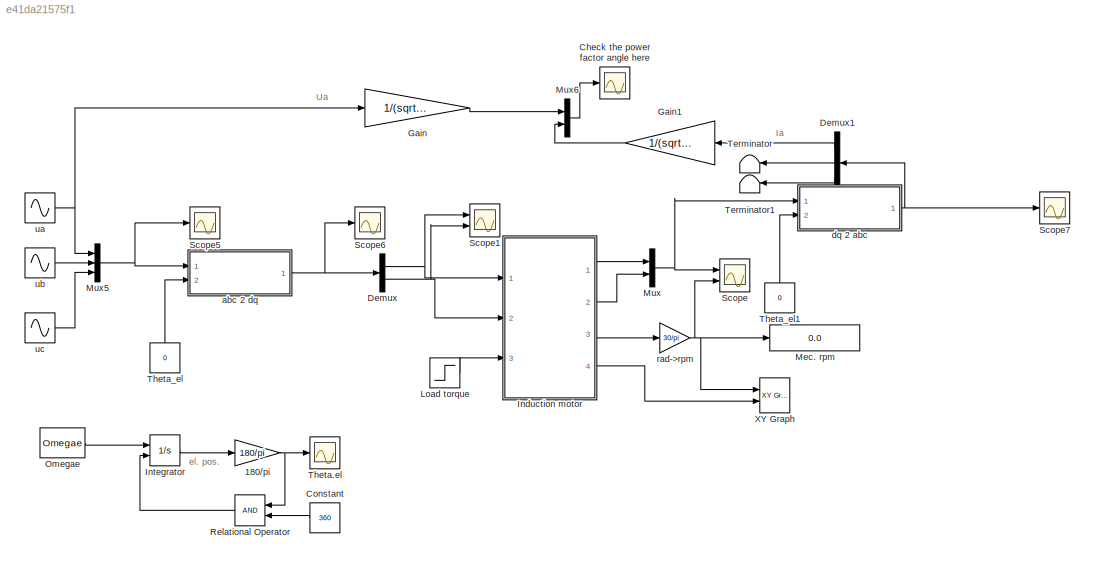
MODEL slx_e41da21575f1
KIND model
BLOCK [Gain] 180//pi
  Gain = 180/pi
  OutDataTypeStr = Inherit: Inherit via internal rule
  ParamDataTypeStr = Inherit: Inherit via internal rule
  SaturateOnIntegerOverflow = off
BLOCK [Scope] Check the power factor angle here
  DataFormat = StructureWithTime
  Floating = off
  NumInputPorts = 1
  Ports = [1]
  SampleTime = 0
  SaveName = ScopeData9
  ShowLegends = off
  ZoomMode = xonly
BLOCK [Constant] Constant
  Value = 360
BLOCK [Demux] Demux
  DisplayOption = bar
  Outputs = 2
  Ports = [1, 2]
BLOCK [Demux] Demux1
  DisplayOption = bar
  Outputs = 3
  Ports = [1, 3]
BLOCK [Gain] Gain
  Gain = 1/(sqrt(2)*Un)
  OutDataTypeStr = Inherit: Inherit via internal rule
  ParamDataTypeStr = Inherit: Inherit via internal rule
  SaturateOnIntegerOverflow = off
BLOCK [Gain] Gain1
  Gain = 1/(sqrt(2)*In)
  OutDataTypeStr = Inherit: Inherit via internal rule
  ParamDataTypeStr = Inherit: Inherit via internal rule
  SaturateOnIntegerOverflow = off
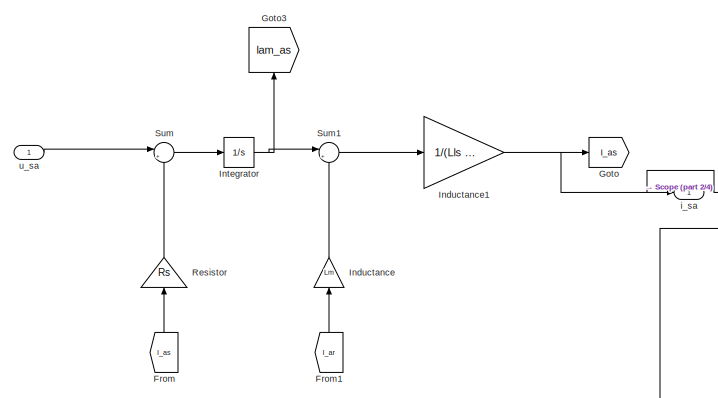
[diagram: Induction motor - part 1/4, top left region]
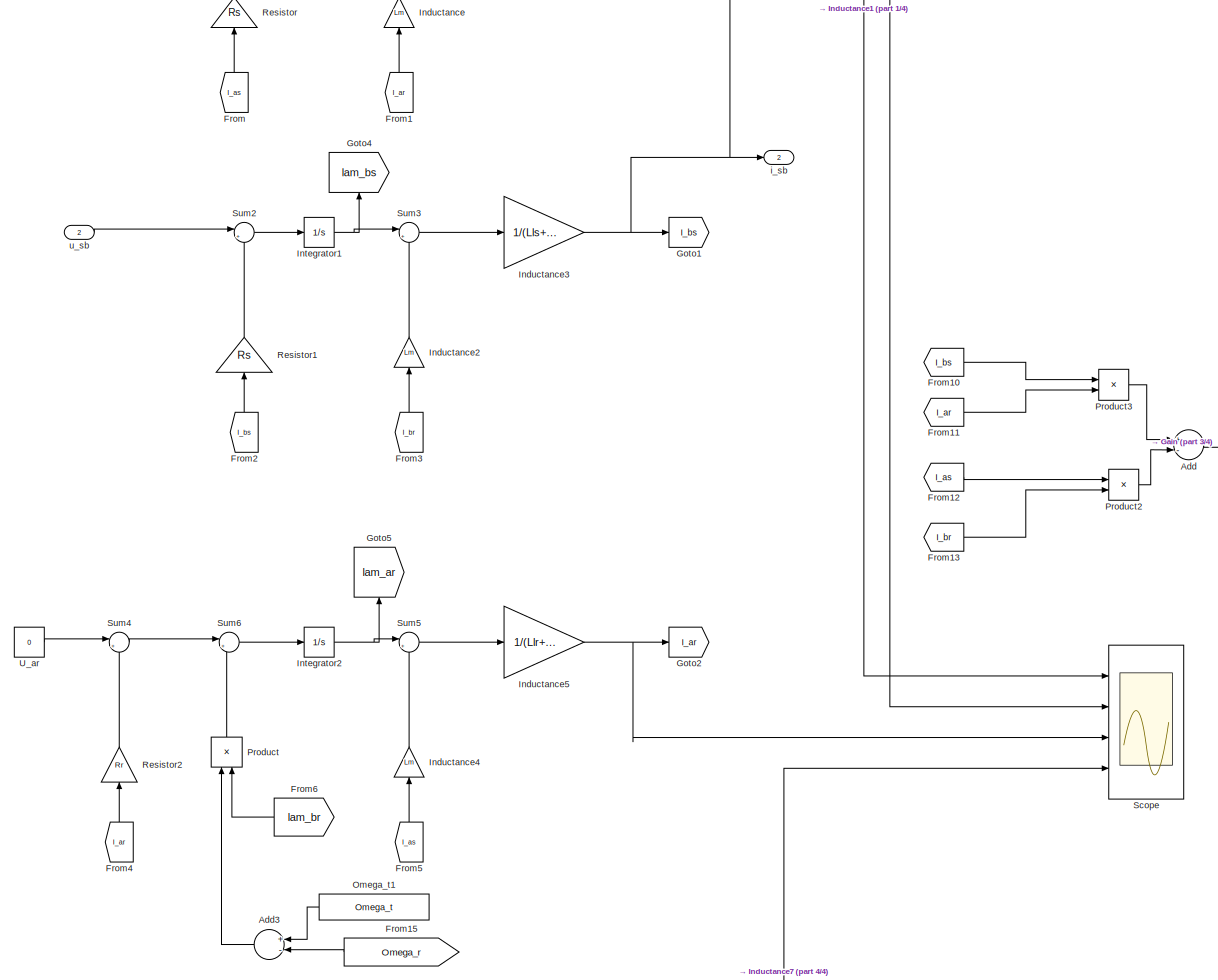
[diagram: Induction motor - part 2/4, middle left region]
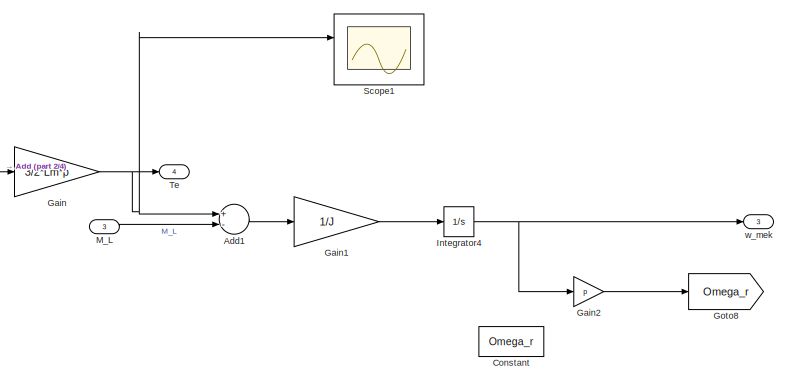
[diagram: Induction motor - part 3/4, middle right region]
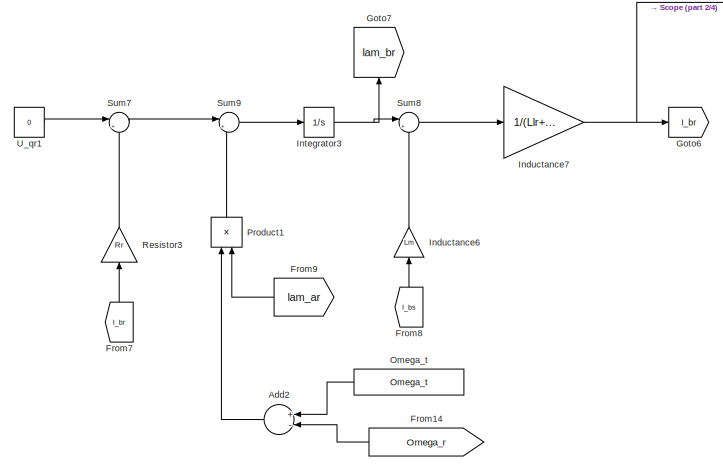
[diagram: Induction motor - part 4/4, bottom left region]
BLOCK [SubSystem] Induction motor
  FunctionWithSeparateData = off
  MaskHideContents = off
  MinAlgLoopOccurrences = off
  Opaque = off
  Ports = [3, 4]
  PropExecContextOutsideSubsystem = off
  RTWSystemCode = Auto
  RequestExecContextInheritance = off
BLOCK [Sum] Induction motor/Add
  InputSameDT = off
  Inputs = +-
  OutDataTypeStr = Inherit: Inherit via internal rule
  Ports = [2, 1]
  SaturateOnIntegerOverflow = off
BLOCK [Sum] Induction motor/Add1
  InputSameDT = off
  Inputs = +-
  OutDataTypeStr = Inherit: Inherit via internal rule
  Ports = [2, 1]
  SaturateOnIntegerOverflow = off
BLOCK [Sum] Induction motor/Add2
  InputSameDT = off
  Inputs = +-
  OutDataTypeStr = Inherit: Inherit via internal rule
  Ports = [2, 1]
  SaturateOnIntegerOverflow = off
BLOCK [Sum] Induction motor/Add3
  InputSameDT = off
  Inputs = +-
  OutDataTypeStr = Inherit: Inherit via internal rule
  Ports = [2, 1]
  SaturateOnIntegerOverflow = off
BLOCK [Constant] Induction motor/Constant
  Value = Omega_r
BLOCK [From] Induction motor/From
  GotoTag = I_as
BLOCK [From] Induction motor/From1
  GotoTag = I_ar
BLOCK [From] Induction motor/From10
  GotoTag = I_bs
BLOCK [From] Induction motor/From11
  GotoTag = I_ar
BLOCK [From] Induction motor/From12
  GotoTag = I_as
BLOCK [From] Induction motor/From13
  GotoTag = I_br
BLOCK [From] Induction motor/From14
  GotoTag = Omega_r
BLOCK [From] Induction motor/From15
  GotoTag = Omega_r
BLOCK [From] Induction motor/From2
  GotoTag = I_bs
BLOCK [From] Induction motor/From3
  GotoTag = I_br
BLOCK [From] Induction motor/From4
  GotoTag = I_ar
BLOCK [From] Induction motor/From5
  GotoTag = I_as
BLOCK [From] Induction motor/From6
  GotoTag = lam_br
BLOCK [From] Induction motor/From7
  GotoTag = I_br
BLOCK [From] Induction motor/From8
  GotoTag = I_bs
BLOCK [From] Induction motor/From9
  GotoTag = lam_ar
BLOCK [Gain] Induction motor/Gain
  Gain = 3/2*Lm*p
  OutDataTypeStr = Inherit: Inherit via internal rule
  ParamDataTypeStr = Inherit: Inherit via internal rule
  SaturateOnIntegerOverflow = off
BLOCK [Gain] Induction motor/Gain1
  Gain = 1/J
  OutDataTypeStr = Inherit: Inherit via internal rule
  ParamDataTypeStr = Inherit: Inherit via internal rule
  SaturateOnIntegerOverflow = off
BLOCK [Gain] Induction motor/Gain2
  Gain = p
  OutDataTypeStr = Inherit: Inherit via internal rule
  ParamDataTypeStr = Inherit: Inherit via internal rule
  SaturateOnIntegerOverflow = off
BLOCK [Goto] Induction motor/Goto
  GotoTag = I_as
BLOCK [Goto] Induction motor/Goto1
  GotoTag = I_bs
BLOCK [Goto] Induction motor/Goto2
  GotoTag = I_ar
BLOCK [Goto] Induction motor/Goto3
  GotoTag = lam_as
BLOCK [Goto] Induction motor/Goto4
  GotoTag = lam_bs
BLOCK [Goto] Induction motor/Goto5
  GotoTag = lam_ar
BLOCK [Goto] Induction motor/Goto6
  GotoTag = I_br
BLOCK [Goto] Induction motor/Goto7
  GotoTag = lam_br
BLOCK [Goto] Induction motor/Goto8
  GotoTag = Omega_r
BLOCK [Gain] Induction motor/Inductance
  Gain = Lm
  OutDataTypeStr = Inherit: Inherit via internal rule
  ParamDataTypeStr = Inherit: Inherit via internal rule
  SaturateOnIntegerOverflow = off
BLOCK [Gain] Induction motor/Inductance1
  Gain = 1/(Lls +Lm)
  OutDataTypeStr = Inherit: Inherit via internal rule
  ParamDataTypeStr = Inherit: Inherit via internal rule
  SaturateOnIntegerOverflow = off
BLOCK [Gain] Induction motor/Inductance2
  Gain = Lm
  OutDataTypeStr = Inherit: Inherit via internal rule
  ParamDataTypeStr = Inherit: Inherit via internal rule
  SaturateOnIntegerOverflow = off
BLOCK [Gain] Induction motor/Inductance3
  Gain = 1/(Lls+Lm)
  OutDataTypeStr = Inherit: Inherit via internal rule
  ParamDataTypeStr = Inherit: Inherit via internal rule
  SaturateOnIntegerOverflow = off
BLOCK [Gain] Induction motor/Inductance4
  Gain = Lm
  OutDataTypeStr = Inherit: Inherit via internal rule
  ParamDataTypeStr = Inherit: Inherit via internal rule
  SaturateOnIntegerOverflow = off
BLOCK [Gain] Induction motor/Inductance5
  Gain = 1/(Llr+Lm)
  OutDataTypeStr = Inherit: Inherit via internal rule
  ParamDataTypeStr = Inherit: Inherit via internal rule
  SaturateOnIntegerOverflow = off
BLOCK [Gain] Induction motor/Inductance6
  Gain = Lm
  OutDataTypeStr = Inherit: Inherit via internal rule
  ParamDataTypeStr = Inherit: Inherit via internal rule
  SaturateOnIntegerOverflow = off
BLOCK [Gain] Induction motor/Inductance7
  Gain = 1/(Llr+Lm)
  OutDataTypeStr = Inherit: Inherit via internal rule
  ParamDataTypeStr = Inherit: Inherit via internal rule
  SaturateOnIntegerOverflow = off
BLOCK [Integrator] Induction motor/Integrator
  Ports = [1, 1]
BLOCK [Integrator] Induction motor/Integrator1
  Ports = [1, 1]
BLOCK [Integrator] Induction motor/Integrator2
  Ports = [1, 1]
BLOCK [Integrator] Induction motor/Integrator3
  Ports = [1, 1]
BLOCK [Integrator] Induction motor/Integrator4
  Ports = [1, 1]
BLOCK [Inport] Induction motor/M_L
  IconDisplay = Port number
  Port = 3
BLOCK [Constant] Induction motor/Omega_t
  Value = Omega_t
BLOCK [Constant] Induction motor/Omega_t1
  Value = Omega_t
BLOCK [Product] Induction motor/Product
  InputSameDT = off
  OutDataTypeStr = Inherit: Inherit via internal rule
  Ports = [2, 1]
  RndMeth = Floor
  SaturateOnIntegerOverflow = off
BLOCK [Product] Induction motor/Product1
  InputSameDT = off
  OutDataTypeStr = Inherit: Inherit via internal rule
  Ports = [2, 1]
  RndMeth = Floor
  SaturateOnIntegerOverflow = off
BLOCK [Product] Induction motor/Product2
  InputSameDT = off
  OutDataTypeStr = Inherit: Inherit via internal rule
  Ports = [2, 1]
  RndMeth = Floor
  SaturateOnIntegerOverflow = off
BLOCK [Product] Induction motor/Product3
  InputSameDT = off
  OutDataTypeStr = Inherit: Inherit via internal rule
  Ports = [2, 1]
  RndMeth = Floor
  SaturateOnIntegerOverflow = off
BLOCK [Gain] Induction motor/Resistor
  Gain = Rs
  OutDataTypeStr = Inherit: Inherit via internal rule
  ParamDataTypeStr = Inherit: Inherit via internal rule
  SaturateOnIntegerOverflow = off
BLOCK [Gain] Induction motor/Resistor1
  Gain = Rs
  OutDataTypeStr = Inherit: Inherit via internal rule
  ParamDataTypeStr = Inherit: Inherit via internal rule
  SaturateOnIntegerOverflow = off
BLOCK [Gain] Induction motor/Resistor2
  Gain = Rr
  OutDataTypeStr = Inherit: Inherit via internal rule
  ParamDataTypeStr = Inherit: Inherit via internal rule
  SaturateOnIntegerOverflow = off
BLOCK [Gain] Induction motor/Resistor3
  Gain = Rr
  OutDataTypeStr = Inherit: Inherit via internal rule
  ParamDataTypeStr = Inherit: Inherit via internal rule
  SaturateOnIntegerOverflow = off
BLOCK [Scope] Induction motor/Scope
  DataFormat = StructureWithTime
  Floating = off
  LimitDataPoints = off
  NumInputPorts = 4
  Ports = [4]
  SampleTime = 0
  SaveName = ScopeData1
  ShowLegends = off
  YMax = 0~0~3.75e+14~3.75e+14
  YMin = -3.5e+14~-3.5e+14~0~0
BLOCK [Scope] Induction motor/Scope1
  DataFormat = StructureWithTime
  Floating = off
  LimitDataPoints = off
  NumInputPorts = 2
  Ports = [2]
  SampleTime = 0
  SaveName = ScopeData3
  ShowLegends = off
  YMax = 0~0
  YMin = -3.5e+14~-3.5e+14
  ZoomMode = yonly
BLOCK [Sum] Induction motor/Sum
  IconShape = round
  InputSameDT = off
  Inputs = |+-
  OutDataTypeStr = Inherit: Inherit via internal rule
  Ports = [2, 1]
  SaturateOnIntegerOverflow = off
BLOCK [Sum] Induction motor/Sum1
  IconShape = round
  InputSameDT = off
  Inputs = |+-
  OutDataTypeStr = Inherit: Inherit via internal rule
  Ports = [2, 1]
  SaturateOnIntegerOverflow = off
BLOCK [Sum] Induction motor/Sum2
  IconShape = round
  InputSameDT = off
  Inputs = |+-
  OutDataTypeStr = Inherit: Inherit via internal rule
  Ports = [2, 1]
  SaturateOnIntegerOverflow = off
BLOCK [Sum] Induction motor/Sum3
  IconShape = round
  InputSameDT = off
  Inputs = |+-
  OutDataTypeStr = Inherit: Inherit via internal rule
  Ports = [2, 1]
  SaturateOnIntegerOverflow = off
BLOCK [Sum] Induction motor/Sum4
  IconShape = round
  InputSameDT = off
  Inputs = |+-
  OutDataTypeStr = Inherit: Inherit via internal rule
  Ports = [2, 1]
  SaturateOnIntegerOverflow = off
BLOCK [Sum] Induction motor/Sum5
  IconShape = round
  InputSameDT = off
  Inputs = |+-
  OutDataTypeStr = Inherit: Inherit via internal rule
  Ports = [2, 1]
  SaturateOnIntegerOverflow = off
BLOCK [Sum] Induction motor/Sum6
  IconShape = round
  InputSameDT = off
  Inputs = |++
  OutDataTypeStr = Inherit: Inherit via internal rule
  Ports = [2, 1]
  SaturateOnIntegerOverflow = off
BLOCK [Sum] Induction motor/Sum7
  IconShape = round
  InputSameDT = off
  Inputs = |+-
  OutDataTypeStr = Inherit: Inherit via internal rule
  Ports = [2, 1]
  SaturateOnIntegerOverflow = off
BLOCK [Sum] Induction motor/Sum8
  IconShape = round
  InputSameDT = off
  Inputs = |+-
  OutDataTypeStr = Inherit: Inherit via internal rule
  Ports = [2, 1]
  SaturateOnIntegerOverflow = off
BLOCK [Sum] Induction motor/Sum9
  IconShape = round
  InputSameDT = off
  Inputs = |+-
  OutDataTypeStr = Inherit: Inherit via internal rule
  Ports = [2, 1]
  SaturateOnIntegerOverflow = off
BLOCK [Outport] Induction motor/Te
  IconDisplay = Port number
  Port = 4
BLOCK [Constant] Induction motor/U_ar
  Value = 0
BLOCK [Constant] Induction motor/U_qr1
  Value = 0
BLOCK [Outport] Induction motor/i_sa
  IconDisplay = Port number
BLOCK [Outport] Induction motor/i_sb
  IconDisplay = Port number
  Port = 2
BLOCK [Inport] Induction motor/u_sa
  IconDisplay = Port number
BLOCK [Inport] Induction motor/u_sb
  IconDisplay = Port number
  Port = 2
BLOCK [Outport] Induction motor/w_mek
  IconDisplay = Port number
  Port = 3
BLOCK [Integrator] Integrator
  ExternalReset = rising
  Ports = [2, 1]
BLOCK [Step] Load torque
  After = 14.6912
  SampleTime = 0
  Time = 0.25
BLOCK [Display] Mec. rpm
  Decimation = 1
  Ports = [1]
BLOCK [Mux] Mux
  DisplayOption = bar
  Inputs = 2
  Ports = [2, 1]
BLOCK [Mux] Mux5
  DisplayOption = bar
  Inputs = 3
  Ports = [3, 1]
BLOCK [Mux] Mux6
  DisplayOption = bar
  Inputs = 2
  Ports = [2, 1]
BLOCK [Constant] Omegae
  Value = Omegae
BLOCK [RelationalOperator] Relational Operator
  InputSameDT = off
  OutDataTypeStr = boolean
  Ports = [2, 1]
BLOCK [Scope] Scope
  DataFormat = StructureWithTime
  Floating = off
  LimitDataPoints = off
  NumInputPorts = 2
  Ports = [2]
  SampleTime = 0
  ShowLegends = off
  TimeRange = 0.5
  YMax = 40~1750
  YMin = -40~0
  ZoomMode = yonly
BLOCK [Scope] Scope1
  DataFormat = StructureWithTime
  Floating = off
  LimitDataPoints = off
  NumInputPorts = 2
  Ports = [2]
  SampleTime = 0
  SaveName = ScopeData2
  ShowLegends = off
  YMax = 350~300
  YMin = -50~-400
  ZoomMode = xonly
BLOCK [Scope] Scope5
  DataFormat = StructureWithTime
  Floating = off
  NumInputPorts = 1
  Ports = [1]
  SampleTime = 0
  SaveName = ScopeData5
  ShowLegends = off
  ZoomMode = xonly
BLOCK [Scope] Scope6
  DataFormat = StructureWithTime
  Floating = off
  NumInputPorts = 1
  Ports = [1]
  SampleTime = 0
  SaveName = ScopeData7
  ShowLegends = off
  ZoomMode = xonly
BLOCK [Scope] Scope7
  DataFormat = StructureWithTime
  Floating = off
  NumInputPorts = 1
  Ports = [1]
  SampleTime = 0
  SaveName = ScopeData8
  ShowLegends = off
  ZoomMode = xonly
BLOCK [Terminator] Terminator
BLOCK [Terminator] Terminator1
BLOCK [Scope] Theta.el
  DataFormat = StructureWithTime
  Floating = off
  LimitDataPoints = off
  NumInputPorts = 1
  Ports = [1]
  SampleTime = 0
  SaveName = ScopeData6
  ShowLegends = off
  YMax = 225
  YMin = -225
  ZoomMode = xonly
BLOCK [Constant] Theta_el
  Value = 0
BLOCK [Constant] Theta_el1
  Value = 0
BLOCK [Reference] XY Graph  REF=simulink/Sinks/XY Graph
  Ports = [2]
  SourceBlock = simulink/Sinks/XY Graph
  SourceType = XY scope.
  st = -1
  xmax = 2000
  xmin = 0
  ymax = 50
  ymin = -5
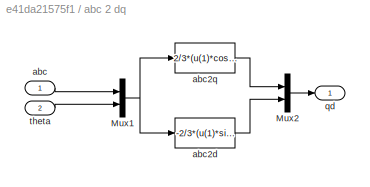
BLOCK [SubSystem] abc 2 dq
  FunctionWithSeparateData = off
  MaskHideContents = off
  MinAlgLoopOccurrences = off
  Opaque = off
  Ports = [2, 1]
  PropExecContextOutsideSubsystem = off
  RTWSystemCode = Auto
  RequestExecContextInheritance = off
BLOCK [Mux] abc 2 dq/Mux1
  DisplayOption = bar
  Inputs = 2
  Ports = [2, 1]
BLOCK [Mux] abc 2 dq/Mux2
  DisplayOption = bar
  Inputs = 2
  Ports = [2, 1]
BLOCK [Inport] abc 2 dq/abc
  IconDisplay = Port number
BLOCK [Fcn] abc 2 dq/abc2d
  Expr = -2/3*(u(1)*sin(u(4))+u(2)*sin(u(4)-2*pi/3)+u(3)*sin(u(4)-4*pi/3))
BLOCK [Fcn] abc 2 dq/abc2q
  Expr = 2/3*(u(1)*cos(u(4))+u(2)*cos(u(4)-2*pi/3)+u(3)*cos(u(4)-4*pi/3))
BLOCK [Outport] abc 2 dq/qd
  IconDisplay = Port number
BLOCK [Inport] abc 2 dq/theta
  IconDisplay = Port number
  Port = 2
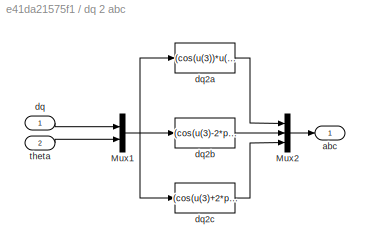
BLOCK [SubSystem] dq 2 abc
  FunctionWithSeparateData = off
  MaskHideContents = off
  MinAlgLoopOccurrences = off
  Opaque = off
  Ports = [2, 1]
  PropExecContextOutsideSubsystem = off
  RTWSystemCode = Auto
  RequestExecContextInheritance = off
BLOCK [Mux] dq 2 abc/Mux1
  DisplayOption = bar
  Inputs = 2
  Ports = [2, 1]
BLOCK [Mux] dq 2 abc/Mux2
  DisplayOption = bar
  Inputs = 3
  Ports = [3, 1]
BLOCK [Outport] dq 2 abc/abc
  IconDisplay = Port number
BLOCK [Inport] dq 2 abc/dq
  IconDisplay = Port number
BLOCK [Fcn] dq 2 abc/dq2a
  Expr = (cos(u(3))*u(1)-sin(u(3))*u(2))
BLOCK [Fcn] dq 2 abc/dq2b
  Expr = (cos(u(3)-2*pi/3)*u(1)-sin(u(3)-2*pi/3)*u(2))
BLOCK [Fcn] dq 2 abc/dq2c
  Expr = (cos(u(3)+2*pi/3)*u(1)-sin(u(3)+2*pi/3)*u(2))
BLOCK [Inport] dq 2 abc/theta
  IconDisplay = Port number
  Port = 2
BLOCK [Gain] rad->rpm
  Gain = 30/pi
BLOCK [Sin] ua
  Amplitude = sqrt(2)*Un
  Frequency = Omegae
  Phase = pi/2
  Ports = [0, 1]
  SampleTime = 0
BLOCK [Sin] ub
  Amplitude = sqrt(2)*Un
  Frequency = Omegae
  Phase = pi/2-120/180*pi
  Ports = [0, 1]
  SampleTime = 0
BLOCK [Sin] uc
  Amplitude = sqrt(2)*Un
  Frequency = Omegae
  Phase = pi/2-240/180*pi
  Ports = [0, 1]
  SampleTime = 0
ANNOTATION (root): Ia
ANNOTATION (root): Ua
ANNOTATION (root): el. pos.
NET 180//pi:1 -> Relational Operator:1, Theta.el:1
LINE Constant:1 -> Relational Operator:2
LINE Demux1:1 -> Gain1:1
LINE Demux1:2 -> Terminator:1
LINE Demux1:3 -> Terminator1:1
NET Demux:1 -> Induction motor:1, Scope1:1
NET Demux:2 -> Induction motor:2, Scope1:2
LINE Gain1:1 -> Mux6:2
LINE Gain:1 -> Mux6:1
LINE Induction motor/Add1:1 -> Induction motor/Gain1:1
LINE Induction motor/Add2:1 -> Induction motor/Product1:1
LINE Induction motor/Add3:1 -> Induction motor/Product:1
LINE Induction motor/Add:1 -> Induction motor/Gain:1
LINE Induction motor/From10:1 -> Induction motor/Product3:1
LINE Induction motor/From11:1 -> Induction motor/Product3:2
LINE Induction motor/From12:1 -> Induction motor/Product2:1
LINE Induction motor/From13:1 -> Induction motor/Product2:2
LINE Induction motor/From14:1 -> Induction motor/Add2:2
LINE Induction motor/From15:1 -> Induction motor/Add3:2
LINE Induction motor/From1:1 -> Induction motor/Inductance:1
LINE Induction motor/From2:1 -> Induction motor/Resistor1:1
LINE Induction motor/From3:1 -> Induction motor/Inductance2:1
LINE Induction motor/From4:1 -> Induction motor/Resistor2:1
LINE Induction motor/From5:1 -> Induction motor/Inductance4:1
LINE Induction motor/From6:1 -> Induction motor/Product:2
LINE Induction motor/From7:1 -> Induction motor/Resistor3:1
LINE Induction motor/From8:1 -> Induction motor/Inductance6:1
LINE Induction motor/From9:1 -> Induction motor/Product1:2
LINE Induction motor/From:1 -> Induction motor/Resistor:1
LINE Induction motor/Gain1:1 -> Induction motor/Integrator4:1
LINE Induction motor/Gain2:1 -> Induction motor/Goto8:1
NET Induction motor/Gain:1 -> Induction motor/Add1:1, Induction motor/Scope1:1, Induction motor/Te:1
NET Induction motor/Inductance1:1 -> Induction motor/Goto:1, Induction motor/Scope:1, Induction motor/i_sa:1
LINE Induction motor/Inductance2:1 -> Induction motor/Sum3:2
NET Induction motor/Inductance3:1 -> Induction motor/Goto1:1, Induction motor/Scope:2, Induction motor/i_sb:1
LINE Induction motor/Inductance4:1 -> Induction motor/Sum5:2
NET Induction motor/Inductance5:1 -> Induction motor/Goto2:1, Induction motor/Scope:3
LINE Induction motor/Inductance6:1 -> Induction motor/Sum8:2
NET Induction motor/Inductance7:1 -> Induction motor/Goto6:1, Induction motor/Scope:4
LINE Induction motor/Inductance:1 -> Induction motor/Sum1:2
NET Induction motor/Integrator1:1 -> Induction motor/Goto4:1, Induction motor/Sum3:1
NET Induction motor/Integrator2:1 -> Induction motor/Goto5:1, Induction motor/Sum5:1
NET Induction motor/Integrator3:1 -> Induction motor/Goto7:1, Induction motor/Sum8:1
NET Induction motor/Integrator4:1 -> Induction motor/Gain2:1, Induction motor/w_mek:1
NET Induction motor/Integrator:1 -> Induction motor/Goto3:1, Induction motor/Sum1:1
LINE Induction motor/M_L:1 -> Induction motor/Add1:2
LINE Induction motor/Omega_t1:1 -> Induction motor/Add3:1
LINE Induction motor/Omega_t:1 -> Induction motor/Add2:1
LINE Induction motor/Product1:1 -> Induction motor/Sum9:2
LINE Induction motor/Product2:1 -> Induction motor/Add:2
LINE Induction motor/Product3:1 -> Induction motor/Add:1
LINE Induction motor/Product:1 -> Induction motor/Sum6:2
LINE Induction motor/Resistor1:1 -> Induction motor/Sum2:2
LINE Induction motor/Resistor2:1 -> Induction motor/Sum4:2
LINE Induction motor/Resistor3:1 -> Induction motor/Sum7:2
LINE Induction motor/Resistor:1 -> Induction motor/Sum:2
LINE Induction motor/Sum1:1 -> Induction motor/Inductance1:1
LINE Induction motor/Sum2:1 -> Induction motor/Integrator1:1
LINE Induction motor/Sum3:1 -> Induction motor/Inductance3:1
LINE Induction motor/Sum4:1 -> Induction motor/Sum6:1
LINE Induction motor/Sum5:1 -> Induction motor/Inductance5:1
LINE Induction motor/Sum6:1 -> Induction motor/Integrator2:1
LINE Induction motor/Sum7:1 -> Induction motor/Sum9:1
LINE Induction motor/Sum8:1 -> Induction motor/Inductance7:1
LINE Induction motor/Sum9:1 -> Induction motor/Integrator3:1
LINE Induction motor/Sum:1 -> Induction motor/Integrator:1
LINE Induction motor/U_ar:1 -> Induction motor/Sum4:1
LINE Induction motor/U_qr1:1 -> Induction motor/Sum7:1
LINE Induction motor/u_sa:1 -> Induction motor/Sum:1
LINE Induction motor/u_sb:1 -> Induction motor/Sum2:1
LINE Induction motor:1 -> Mux:1
LINE Induction motor:2 -> Mux:2
LINE Induction motor:3 -> rad->rpm:1
LINE Induction motor:4 -> XY Graph:2
LINE Integrator:1 -> 180//pi:1
LINE Load torque:1 -> Induction motor:3
NET Mux5:1 -> Scope5:1, abc 2 dq:1
LINE Mux6:1 -> Check the power factor angle here:1
NET Mux:1 -> Scope:1, dq 2 abc:1
LINE Omegae:1 -> Integrator:1
LINE Relational Operator:1 -> Integrator:2
LINE Theta_el1:1 -> dq 2 abc:2
LINE Theta_el:1 -> abc 2 dq:2
NET abc 2 dq/Mux1:1 -> abc 2 dq/abc2d:1, abc 2 dq/abc2q:1
LINE abc 2 dq/Mux2:1 -> abc 2 dq/qd:1
LINE abc 2 dq/abc2d:1 -> abc 2 dq/Mux2:2
LINE abc 2 dq/abc2q:1 -> abc 2 dq/Mux2:1
LINE abc 2 dq/abc:1 -> abc 2 dq/Mux1:1
LINE abc 2 dq/theta:1 -> abc 2 dq/Mux1:2
NET abc 2 dq:1 -> Demux:1, Scope6:1
NET dq 2 abc/Mux1:1 -> dq 2 abc/dq2a:1, dq 2 abc/dq2b:1, dq 2 abc/dq2c:1
LINE dq 2 abc/Mux2:1 -> dq 2 abc/abc:1
LINE dq 2 abc/dq2a:1 -> dq 2 abc/Mux2:1
LINE dq 2 abc/dq2b:1 -> dq 2 abc/Mux2:2
LINE dq 2 abc/dq2c:1 -> dq 2 abc/Mux2:3
LINE dq 2 abc/dq:1 -> dq 2 abc/Mux1:1
LINE dq 2 abc/theta:1 -> dq 2 abc/Mux1:2
NET dq 2 abc:1 -> Demux1:1, Scope7:1
NET rad->rpm:1 -> Mec. rpm:1, Scope:2, XY Graph:1
NET ua:1 -> Gain:1, Mux5:1
LINE ub:1 -> Mux5:2
LINE uc:1 -> Mux5:3
note: NET lines group one-source signal fan-out (src -> all destinations, sorted); 1:1 wires keep LINE
